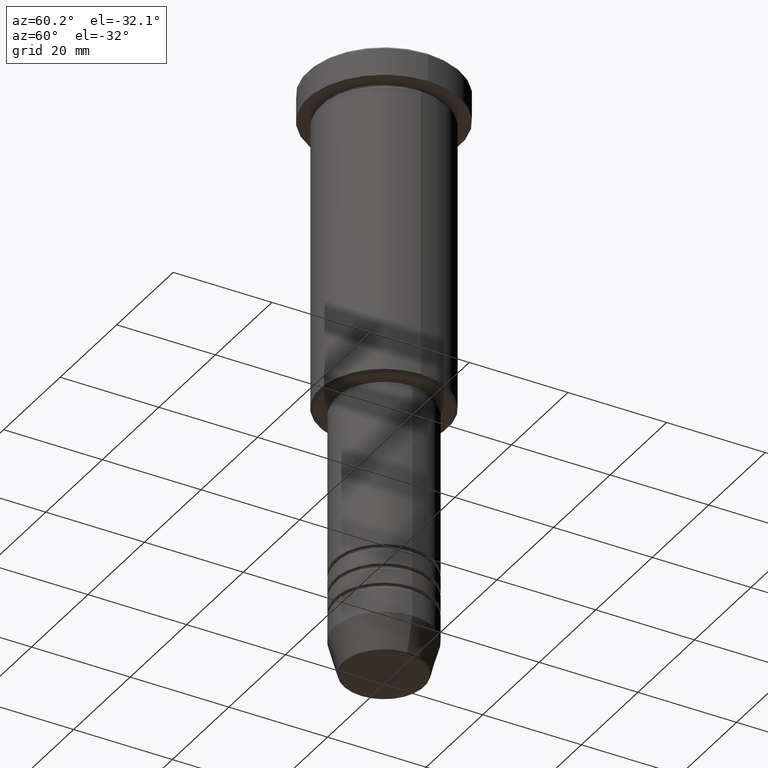
[diagram: clean part render]
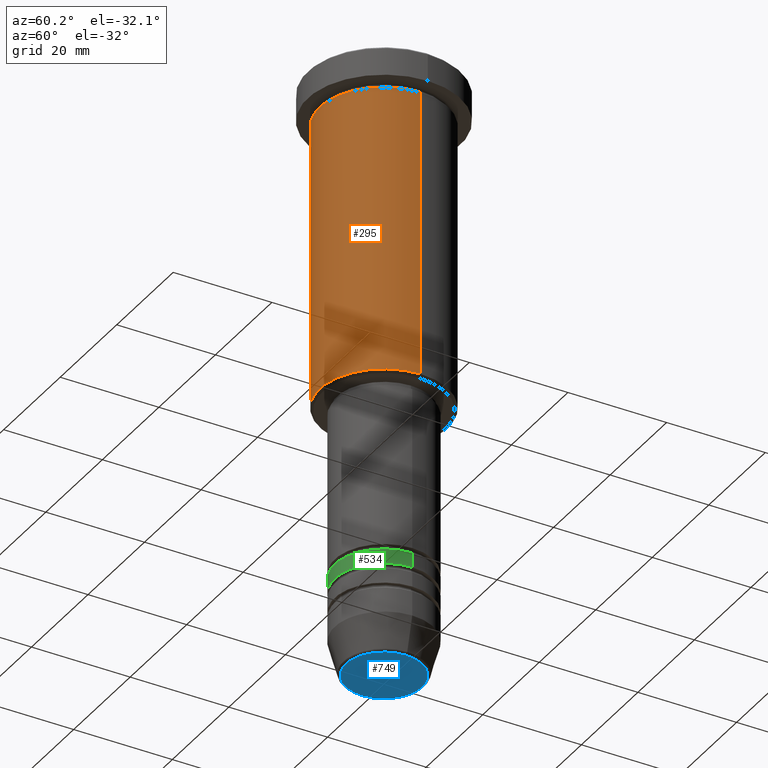
[diagram: same view with three faces highlighted in distinct colors, each labeled with its STEP entity id]
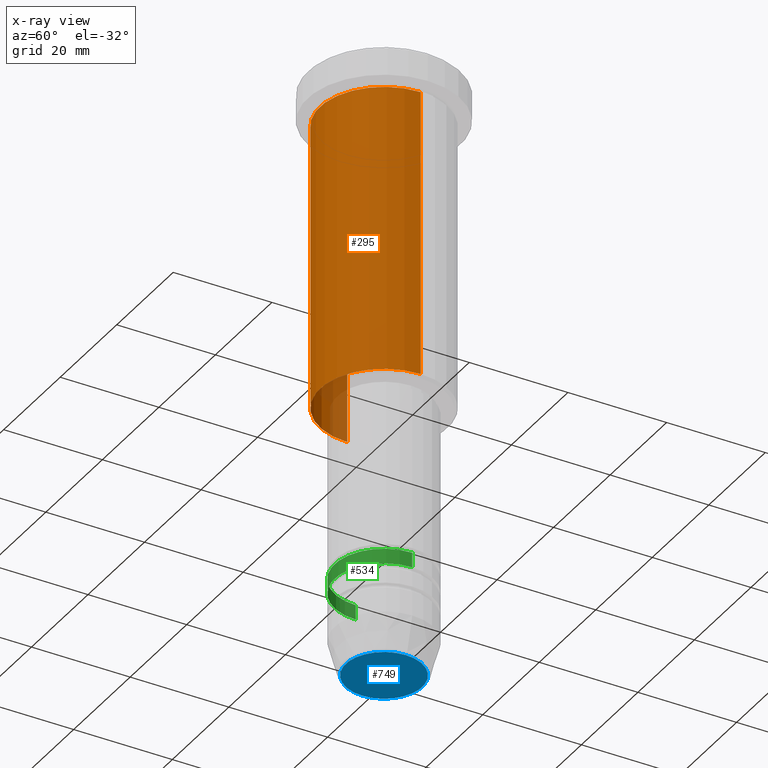
[diagram: x-ray of the same camera — body ghosted, the three highlighted faces saturated]
A machine part, auxiliary view with three faces highlighted in distinct colors.
The next image is the same camera in x-ray (body ghosted, the three faces saturated) — at least one of them is partly hidden behind the body in this view.
Their STEP definitions:

[orange] entity #295 — the highlighted cylindrical surface (partial cylindrical patch) has radius 13 mm, axis along (-0, -0, 1).
#7 = AXIS2_PLACEMENT_3D ( 'NONE', #974, #319, #680 ) ;
#21 = CIRCLE ( 'NONE', #174, 13.00000000000000178 ) ;
#113 = FACE_OUTER_BOUND ( 'NONE', #538, .T. ) ;
#119 = CYLINDRICAL_SURFACE ( 'NONE', #500, 13.00000000000000178 ) ;
#137 = ORIENTED_EDGE ( 'NONE', *, *, #561, .T. ) ;
#150 = EDGE_CURVE ( 'NONE', #315, #996, #1059, .T. ) ;
#159 = CARTESIAN_POINT ( 'NONE',  ( 13.00000000000000178, 0.000000000000000000, 0.000000000000000000 ) ) ;
#174 = AXIS2_PLACEMENT_3D ( 'NONE', #552, #645, #202 ) ;
#202 = DIRECTION ( 'NONE',  ( -1.000000000000000000, 0.000000000000000000, 0.000000000000000000 ) ) ;
#295 = ADVANCED_FACE ( 'NONE', ( #113 ), #119, .T. ) ;
#315 = VERTEX_POINT ( 'NONE', #1113 ) ;
#319 = DIRECTION ( 'NONE',  ( -0.000000000000000000, -0.000000000000000000, 1.000000000000000000 ) ) ;
#324 = VERTEX_POINT ( 'NONE', #741 ) ;
#325 = LINE ( 'NONE', #637, #599 ) ;
#338 = DIRECTION ( 'NONE',  ( -0.000000000000000000, -0.000000000000000000, 1.000000000000000000 ) ) ;
#461 = CARTESIAN_POINT ( 'NONE',  ( 0.000000000000000000, 0.000000000000000000, 0.000000000000000000 ) ) ;
#469 = CIRCLE ( 'NONE', #7, 13.00000000000000178 ) ;
#485 = VERTEX_POINT ( 'NONE', #706 ) ;
#500 = AXIS2_PLACEMENT_3D ( 'NONE', #461, #834, #732 ) ;
#509 = ORIENTED_EDGE ( 'NONE', *, *, #1053, .F. ) ;
#538 = EDGE_LOOP ( 'NONE', ( #509, #137, #593, #669 ) ) ;
#552 = CARTESIAN_POINT ( 'NONE',  ( 0.000000000000000000, 0.000000000000000000, -65.49999999999998579 ) ) ;
#561 = EDGE_CURVE ( 'NONE', #485, #315, #21, .T. ) ;
#593 = ORIENTED_EDGE ( 'NONE', *, *, #150, .T. ) ;
#599 = VECTOR ( 'NONE', #338, 1000.000000000000000 ) ;
#637 = CARTESIAN_POINT ( 'NONE',  ( -13.00000000000000178, 1.592040838891559293E-15, 0.000000000000000000 ) ) ;
#645 = DIRECTION ( 'NONE',  ( -0.000000000000000000, -0.000000000000000000, 1.000000000000000000 ) ) ;
#657 = VECTOR ( 'NONE', #793, 1000.000000000000000 ) ;
#669 = ORIENTED_EDGE ( 'NONE', *, *, #835, .F. ) ;
#680 = DIRECTION ( 'NONE',  ( 1.000000000000000000, 0.000000000000000000, 0.000000000000000000 ) ) ;
#706 = CARTESIAN_POINT ( 'NONE',  ( -13.00000000000000178, 1.592040838891559293E-15, -65.49999999999998579 ) ) ;
#732 = DIRECTION ( 'NONE',  ( 1.000000000000000000, 0.000000000000000000, 0.000000000000000000 ) ) ;
#741 = CARTESIAN_POINT ( 'NONE',  ( -13.00000000000000178, 1.592040838891559293E-15, -6.999999999999995559 ) ) ;
#793 = DIRECTION ( 'NONE',  ( -0.000000000000000000, -0.000000000000000000, 1.000000000000000000 ) ) ;
#800 = CARTESIAN_POINT ( 'NONE',  ( 13.00000000000000178, 0.000000000000000000, -6.999999999999995559 ) ) ;
#834 = DIRECTION ( 'NONE',  ( -0.000000000000000000, -0.000000000000000000, 1.000000000000000000 ) ) ;
#835 = EDGE_CURVE ( 'NONE', #324, #996, #469, .T. ) ;
#974 = CARTESIAN_POINT ( 'NONE',  ( 0.000000000000000000, 0.000000000000000000, -6.999999999999995559 ) ) ;
#996 = VERTEX_POINT ( 'NONE', #800 ) ;
#1053 = EDGE_CURVE ( 'NONE', #485, #324, #325, .T. ) ;
#1059 = LINE ( 'NONE', #159, #657 ) ;
#1113 = CARTESIAN_POINT ( 'NONE',  ( 13.00000000000000178, 0.000000000000000000, -65.49999999999998579 ) ) ;

[blue] entity #749 — the highlighted planar face has unit normal (0, -0, 1).
#15 = CARTESIAN_POINT ( 'NONE',  ( -7.740692158992660055, 9.775343368540041107E-16, -121.0000000000000000 ) ) ;
#38 = DIRECTION ( 'NONE',  ( 0.000000000000000000, -0.000000000000000000, 1.000000000000000000 ) ) ;
#82 = EDGE_LOOP ( 'NONE', ( #321, #515 ) ) ;
#205 = FACE_OUTER_BOUND ( 'NONE', #82, .T. ) ;
#220 = PLANE ( 'NONE',  #1066 ) ;
#289 = DIRECTION ( 'NONE',  ( 1.000000000000000000, 0.000000000000000000, 0.000000000000000000 ) ) ;
#321 = ORIENTED_EDGE ( 'NONE', *, *, #628, .T. ) ;
#340 = VERTEX_POINT ( 'NONE', #15 ) ;
#383 = DIRECTION ( 'NONE',  ( 1.000000000000000000, 0.000000000000000000, 0.000000000000000000 ) ) ;
#397 = CIRCLE ( 'NONE', #1047, 7.740692158992660055 ) ;
#403 = DIRECTION ( 'NONE',  ( 0.000000000000000000, 0.000000000000000000, -1.000000000000000000 ) ) ;
#426 = DIRECTION ( 'NONE',  ( 1.000000000000000000, 0.000000000000000000, 0.000000000000000000 ) ) ;
#427 = EDGE_CURVE ( 'NONE', #340, #679, #642, .T. ) ;
#433 = AXIS2_PLACEMENT_3D ( 'NONE', #626, #805, #426 ) ;
#468 = CARTESIAN_POINT ( 'NONE',  ( 0.000000000000000000, 0.000000000000000000, -121.0000000000000000 ) ) ;
#515 = ORIENTED_EDGE ( 'NONE', *, *, #427, .T. ) ;
#626 = CARTESIAN_POINT ( 'NONE',  ( 0.000000000000000000, 0.000000000000000000, -121.0000000000000000 ) ) ;
#628 = EDGE_CURVE ( 'NONE', #679, #340, #397, .T. ) ;
#642 = CIRCLE ( 'NONE', #433, 7.740692158992660055 ) ;
#679 = VERTEX_POINT ( 'NONE', #1128 ) ;
#749 = ADVANCED_FACE ( 'NONE', ( #205 ), #220, .F. ) ;
#805 = DIRECTION ( 'NONE',  ( 0.000000000000000000, 0.000000000000000000, -1.000000000000000000 ) ) ;
#926 = CARTESIAN_POINT ( 'NONE',  ( 0.000000000000000000, 0.000000000000000000, -121.0000000000000000 ) ) ;
#1047 = AXIS2_PLACEMENT_3D ( 'NONE', #468, #403, #383 ) ;
#1066 = AXIS2_PLACEMENT_3D ( 'NONE', #926, #38, #289 ) ;
#1128 = CARTESIAN_POINT ( 'NONE',  ( 7.740692158992660055, 0.000000000000000000, -121.0000000000000000 ) ) ;

[green] entity #534 — the highlighted cylindrical surface (partial cylindrical patch) has radius 10 mm, axis along (-0, -0, 1).
#17 = ORIENTED_EDGE ( 'NONE', *, *, #969, .F. ) ;
#39 = DIRECTION ( 'NONE',  ( -0.000000000000000000, -0.000000000000000000, 1.000000000000000000 ) ) ;
#92 = EDGE_CURVE ( 'NONE', #954, #345, #565, .T. ) ;
#135 = CARTESIAN_POINT ( 'NONE',  ( 0.000000000000000000, 0.000000000000000000, -100.9999999999999005 ) ) ;
#187 = CYLINDRICAL_SURFACE ( 'NONE', #375, 10.00000000000000178 ) ;
#194 = DIRECTION ( 'NONE',  ( 1.000000000000000000, 0.000000000000000000, 0.000000000000000000 ) ) ;
#212 = AXIS2_PLACEMENT_3D ( 'NONE', #292, #1006, #194 ) ;
#226 = DIRECTION ( 'NONE',  ( -0.000000000000000000, -0.000000000000000000, 1.000000000000000000 ) ) ;
#248 = VERTEX_POINT ( 'NONE', #929 ) ;
#279 = DIRECTION ( 'NONE',  ( -0.000000000000000000, -0.000000000000000000, 1.000000000000000000 ) ) ;
#292 = CARTESIAN_POINT ( 'NONE',  ( 0.000000000000000000, 0.000000000000000000, -103.9999999999999147 ) ) ;
#322 = EDGE_CURVE ( 'NONE', #824, #248, #1012, .T. ) ;
#345 = VERTEX_POINT ( 'NONE', #401 ) ;
#375 = AXIS2_PLACEMENT_3D ( 'NONE', #1013, #279, #731 ) ;
#401 = CARTESIAN_POINT ( 'NONE',  ( 10.00000000000000000, 0.000000000000000000, -100.9999999999999005 ) ) ;
#504 = LINE ( 'NONE', #788, #739 ) ;
#508 = DIRECTION ( 'NONE',  ( -0.000000000000000000, -0.000000000000000000, 1.000000000000000000 ) ) ;
#534 = ADVANCED_FACE ( 'NONE', ( #1102 ), #187, .T. ) ;
#559 = ORIENTED_EDGE ( 'NONE', *, *, #930, .T. ) ;
#565 = CIRCLE ( 'NONE', #757, 10.00000000000000000 ) ;
#729 = CARTESIAN_POINT ( 'NONE',  ( -10.00000000000000000, 1.224646799147353256E-15, -100.9999999999999005 ) ) ;
#731 = DIRECTION ( 'NONE',  ( 1.000000000000000000, 0.000000000000000000, 0.000000000000000000 ) ) ;
#739 = VECTOR ( 'NONE', #508, 1000.000000000000000 ) ;
#757 = AXIS2_PLACEMENT_3D ( 'NONE', #135, #39, #856 ) ;
#767 = CARTESIAN_POINT ( 'NONE',  ( -10.00000000000000178, 1.224646799147353454E-15, -103.9999999999999147 ) ) ;
#788 = CARTESIAN_POINT ( 'NONE',  ( 10.00000000000000178, 0.000000000000000000, 0.000000000000000000 ) ) ;
#823 = LINE ( 'NONE', #1030, #963 ) ;
#824 = VERTEX_POINT ( 'NONE', #767 ) ;
#840 = ORIENTED_EDGE ( 'NONE', *, *, #92, .F. ) ;
#856 = DIRECTION ( 'NONE',  ( 1.000000000000000000, 0.000000000000000000, 0.000000000000000000 ) ) ;
#929 = CARTESIAN_POINT ( 'NONE',  ( 10.00000000000000178, 0.000000000000000000, -103.9999999999999147 ) ) ;
#930 = EDGE_CURVE ( 'NONE', #248, #345, #504, .T. ) ;
#954 = VERTEX_POINT ( 'NONE', #729 ) ;
#963 = VECTOR ( 'NONE', #226, 1000.000000000000000 ) ;
#969 = EDGE_CURVE ( 'NONE', #824, #954, #823, .T. ) ;
#1006 = DIRECTION ( 'NONE',  ( -0.000000000000000000, -0.000000000000000000, 1.000000000000000000 ) ) ;
#1012 = CIRCLE ( 'NONE', #212, 10.00000000000000178 ) ;
#1013 = CARTESIAN_POINT ( 'NONE',  ( 0.000000000000000000, 0.000000000000000000, 0.000000000000000000 ) ) ;
#1030 = CARTESIAN_POINT ( 'NONE',  ( -10.00000000000000178, 1.224646799147353454E-15, 0.000000000000000000 ) ) ;
#1049 = ORIENTED_EDGE ( 'NONE', *, *, #322, .T. ) ;
#1102 = FACE_OUTER_BOUND ( 'NONE', #1183, .T. ) ;
#1183 = EDGE_LOOP ( 'NONE', ( #17, #1049, #559, #840 ) ) ;